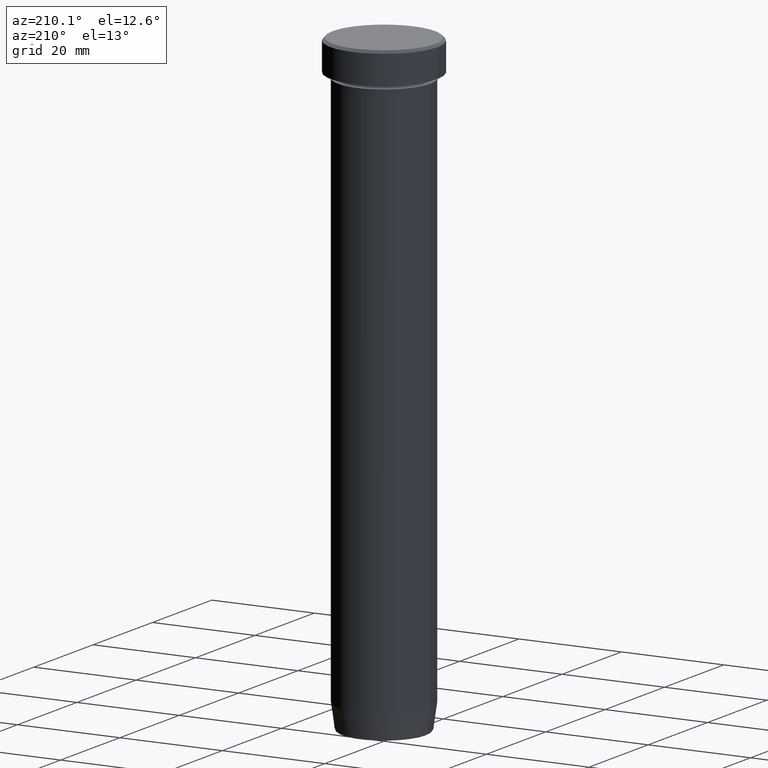
[diagram: clean part render]
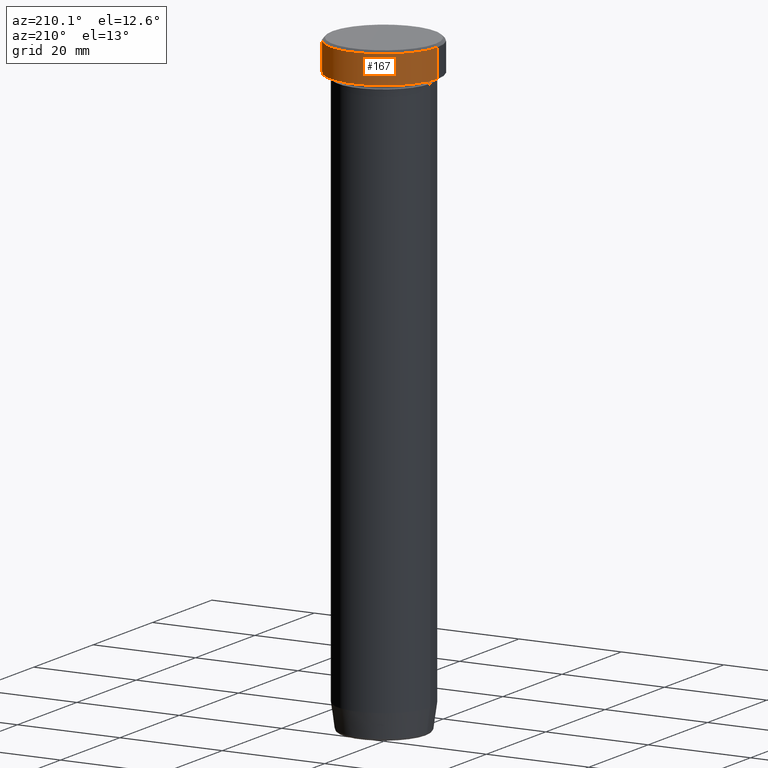
[diagram: same view with one face highlighted and labeled with its STEP entity id]
A machine part, auxiliary view. The second image highlights one B-rep face of the part: STEP entity #167.
In plain terms, the highlighted cylindrical surface (partial cylindrical patch) has radius 10.5 mm, axis along (-0, -0, 1).
Its self-contained STEP definition (entity closure, byte-faithful):
#2 = DIRECTION ( 'NONE',  ( 1.000000000000000000, 0.000000000000000000, 0.000000000000000000 ) ) ;
#14 = VECTOR ( 'NONE', #261, 1000.000000000000000 ) ;
#29 = ORIENTED_EDGE ( 'NONE', *, *, #62, .T. ) ;
#32 = CIRCLE ( 'NONE', #424, 10.50000000000000000 ) ;
#61 = VERTEX_POINT ( 'NONE', #489 ) ;
#62 = EDGE_CURVE ( 'NONE', #61, #127, #32, .T. ) ;
#75 = AXIS2_PLACEMENT_3D ( 'NONE', #178, #364, #542 ) ;
#81 = DIRECTION ( 'NONE',  ( 1.000000000000000000, 0.000000000000000000, 0.000000000000000000 ) ) ;
#112 = VERTEX_POINT ( 'NONE', #495 ) ;
#118 = CARTESIAN_POINT ( 'NONE',  ( 10.50000000000000000, 0.000000000000000000, -0.5000000000000023315 ) ) ;
#127 = VERTEX_POINT ( 'NONE', #586 ) ;
#136 = EDGE_CURVE ( 'NONE', #112, #587, #237, .T. ) ;
#167 = ADVANCED_FACE ( 'NONE', ( #546 ), #373, .T. ) ;
#178 = CARTESIAN_POINT ( 'NONE',  ( 0.000000000000000000, 0.000000000000000000, -0.5000000000000023315 ) ) ;
#183 = DIRECTION ( 'NONE',  ( -0.000000000000000000, -0.000000000000000000, 1.000000000000000000 ) ) ;
#207 = CARTESIAN_POINT ( 'NONE',  ( 0.000000000000000000, 0.000000000000000000, -6.000000000000000000 ) ) ;
#217 = EDGE_LOOP ( 'NONE', ( #29, #350, #219, #332 ) ) ;
#219 = ORIENTED_EDGE ( 'NONE', *, *, #136, .T. ) ;
#230 = LINE ( 'NONE', #499, #14 ) ;
#237 = CIRCLE ( 'NONE', #75, 10.50000000000000000 ) ;
#243 = DIRECTION ( 'NONE',  ( -0.000000000000000000, -0.000000000000000000, 1.000000000000000000 ) ) ;
#252 = EDGE_CURVE ( 'NONE', #127, #112, #230, .T. ) ;
#253 = VECTOR ( 'NONE', #243, 1000.000000000000000 ) ;
#261 = DIRECTION ( 'NONE',  ( -0.000000000000000000, -0.000000000000000000, 1.000000000000000000 ) ) ;
#322 = AXIS2_PLACEMENT_3D ( 'NONE', #412, #183, #2 ) ;
#332 = ORIENTED_EDGE ( 'NONE', *, *, #355, .F. ) ;
#350 = ORIENTED_EDGE ( 'NONE', *, *, #252, .T. ) ;
#355 = EDGE_CURVE ( 'NONE', #61, #587, #468, .T. ) ;
#364 = DIRECTION ( 'NONE',  ( 0.000000000000000000, 0.000000000000000000, -1.000000000000000000 ) ) ;
#373 = CYLINDRICAL_SURFACE ( 'NONE', #322, 10.50000000000000000 ) ;
#383 = CARTESIAN_POINT ( 'NONE',  ( 10.50000000000000000, 0.000000000000000000, 0.000000000000000000 ) ) ;
#404 = DIRECTION ( 'NONE',  ( -0.000000000000000000, -0.000000000000000000, 1.000000000000000000 ) ) ;
#412 = CARTESIAN_POINT ( 'NONE',  ( 0.000000000000000000, 0.000000000000000000, 0.000000000000000000 ) ) ;
#424 = AXIS2_PLACEMENT_3D ( 'NONE', #207, #404, #81 ) ;
#468 = LINE ( 'NONE', #383, #253 ) ;
#489 = CARTESIAN_POINT ( 'NONE',  ( 10.50000000000000000, 0.000000000000000000, -6.000000000000000000 ) ) ;
#495 = CARTESIAN_POINT ( 'NONE',  ( -10.50000000000000000, 1.285879139104720831E-15, -0.5000000000000023315 ) ) ;
#499 = CARTESIAN_POINT ( 'NONE',  ( -10.50000000000000000, 1.285879139104720831E-15, 0.000000000000000000 ) ) ;
#542 = DIRECTION ( 'NONE',  ( 1.000000000000000000, 0.000000000000000000, 0.000000000000000000 ) ) ;
#546 = FACE_OUTER_BOUND ( 'NONE', #217, .T. ) ;
#586 = CARTESIAN_POINT ( 'NONE',  ( -10.50000000000000000, 1.285879139104720831E-15, -6.000000000000000000 ) ) ;
#587 = VERTEX_POINT ( 'NONE', #118 ) ;